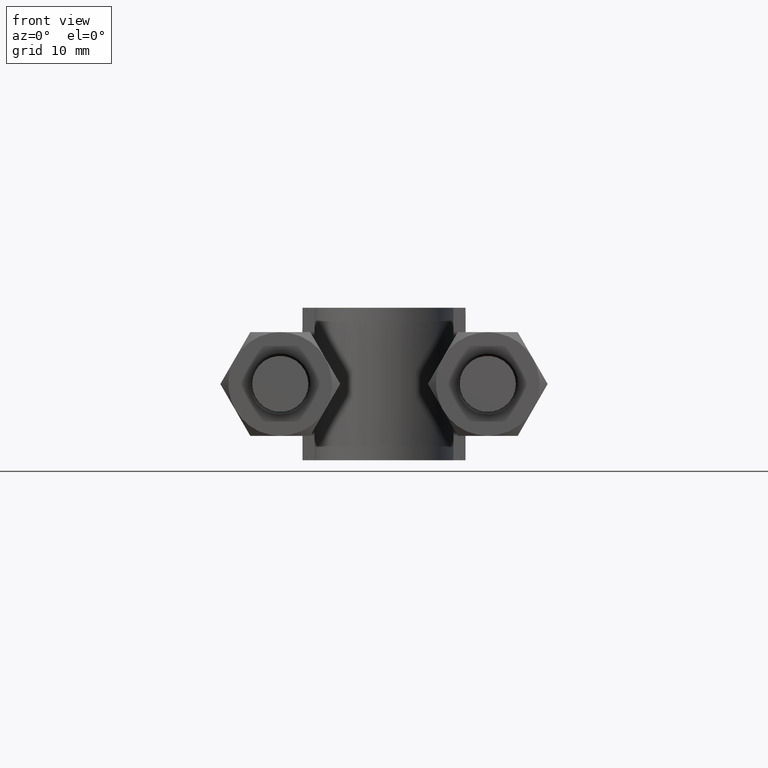
[diagram: clean part render]
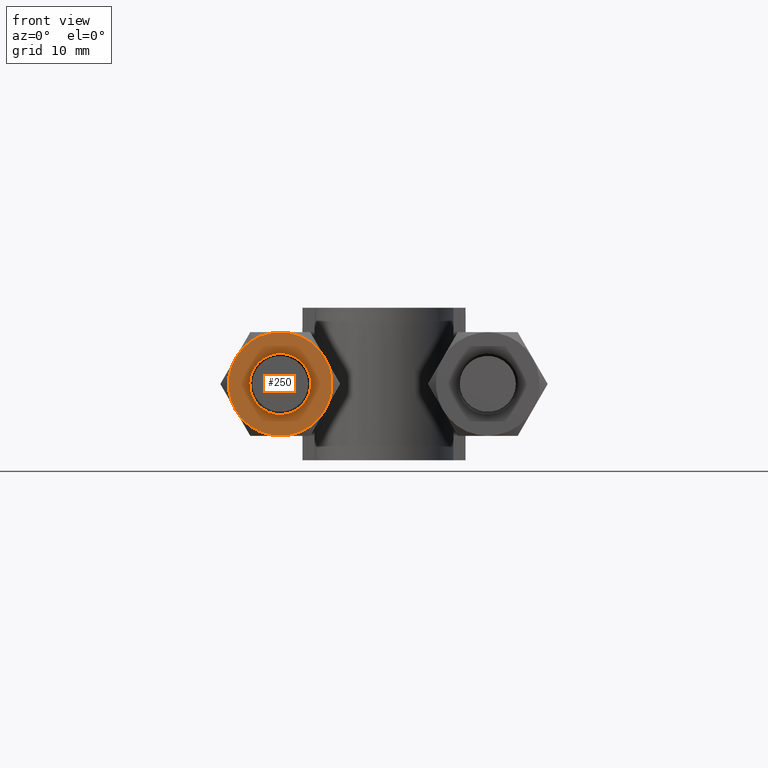
[diagram: same view with one face highlighted and labeled with its STEP entity id]
A machine part, front view. The second image highlights one B-rep face of the part: STEP entity #250.
In plain terms, the highlighted planar face has unit normal (0, 1, -0).
Its self-contained STEP definition (entity closure, byte-faithful):
#250 = ADVANCED_FACE( '', ( #368, #369 ), #370, .F. );
#368 = FACE_OUTER_BOUND( '', #1447, .T. );
#369 = FACE_BOUND( '', #1448, .T. );
#370 = PLANE( '', #1449 );
#1447 = EDGE_LOOP( '', ( #1748, #1749, #1750, #1751, #1752, #1753 ) );
#1448 = EDGE_LOOP( '', ( #1754 ) );
#1449 = AXIS2_PLACEMENT_3D( '', #1755, #1756, #1757 );
#1748 = ORIENTED_EDGE( '', *, *, #2139, .F. );
#1749 = ORIENTED_EDGE( '', *, *, #2140, .F. );
#1750 = ORIENTED_EDGE( '', *, *, #2141, .F. );
#1751 = ORIENTED_EDGE( '', *, *, #2142, .F. );
#1752 = ORIENTED_EDGE( '', *, *, #2137, .F. );
#1753 = ORIENTED_EDGE( '', *, *, #2143, .F. );
#1754 = ORIENTED_EDGE( '', *, *, #2144, .T. );
#1755 = CARTESIAN_POINT( '', ( -17.0000000000000, 19.9999999999961, -7.44901102606166E-015 ) );
#1756 = DIRECTION( '', ( 2.44921270764475E-016, 1.00000000000000, -3.06151588455594E-016 ) );
#1757 = DIRECTION( '', ( 0.866025403784227, -3.65183836637060E-016, -0.500000000000367 ) );
#2137 = EDGE_CURVE( '', #2320, #2322, #2323, .T. );
#2139 = EDGE_CURVE( '', #2325, #2326, #2327, .T. );
#2140 = EDGE_CURVE( '', #2328, #2325, #2329, .T. );
#2141 = EDGE_CURVE( '', #2330, #2328, #2331, .T. );
#2142 = EDGE_CURVE( '', #2322, #2330, #2332, .T. );
#2143 = EDGE_CURVE( '', #2326, #2320, #2333, .T. );
#2144 = EDGE_CURVE( '', #2334, #2334, #2335, .T. );
#2320 = VERTEX_POINT( '', #2768 );
#2322 = VERTEX_POINT( '', #2775 );
#2323 = CIRCLE( '', #2776, 8.50000000000000 );
#2325 = VERTEX_POINT( '', #2785 );
#2326 = VERTEX_POINT( '', #2786 );
#2327 = CIRCLE( '', #2787, 8.50000000000000 );
#2328 = VERTEX_POINT( '', #2788 );
#2329 = CIRCLE( '', #2789, 8.50000000000000 );
#2330 = VERTEX_POINT( '', #2790 );
#2331 = CIRCLE( '', #2791, 8.50000000000000 );
#2332 = CIRCLE( '', #2792, 8.50000000000000 );
#2333 = CIRCLE( '', #2793, 8.50000000000000 );
#2334 = VERTEX_POINT( '', #2794 );
#2335 = CIRCLE( '', #2795, 5.00000000000000 );
#2768 = CARTESIAN_POINT( '', ( -24.3612159321659, 19.9999999999961, 4.25000000000311 ) );
#2775 = CARTESIAN_POINT( '', ( -16.9999999999964, 19.9999999999961, 8.49999999999999 ) );
#2776 = AXIS2_PLACEMENT_3D( '', #3178, #3179, #3180 );
#2785 = CARTESIAN_POINT( '', ( -17.0000000000036, 19.9999999999961, -8.50000000000001 ) );
#2786 = CARTESIAN_POINT( '', ( -24.3612159321695, 19.9999999999961, -4.24999999999689 ) );
#2787 = AXIS2_PLACEMENT_3D( '', #3181, #3182, #3183 );
#2788 = CARTESIAN_POINT( '', ( -9.63878406783406, 19.9999999999961, -4.25000000000313 ) );
#2789 = AXIS2_PLACEMENT_3D( '', #3184, #3185, #3186 );
#2790 = CARTESIAN_POINT( '', ( -9.63878406783046, 19.9999999999961, 4.24999999999687 ) );
#2791 = AXIS2_PLACEMENT_3D( '', #3187, #3188, #3189 );
#2792 = AXIS2_PLACEMENT_3D( '', #3190, #3191, #3192 );
#2793 = AXIS2_PLACEMENT_3D( '', #3193, #3194, #3195 );
#2794 = CARTESIAN_POINT( '', ( -12.6698729810789, 19.9999999999961, -2.50000000000184 ) );
#2795 = AXIS2_PLACEMENT_3D( '', #3196, #3197, #3198 );
#3178 = CARTESIAN_POINT( '', ( -17.0000000000000, 19.9999999999961, -7.44901102606166E-015 ) );
#3179 = DIRECTION( '', ( 2.44921270764475E-016, 1.00000000000000, -3.06151588455594E-016 ) );
#3180 = DIRECTION( '', ( 0.866025403784227, -3.65183836637060E-016, -0.500000000000367 ) );
#3181 = CARTESIAN_POINT( '', ( -17.0000000000000, 19.9999999999961, -7.44901102606166E-015 ) );
#3182 = DIRECTION( '', ( 2.44921270764475E-016, 1.00000000000000, -3.06151588455594E-016 ) );
#3183 = DIRECTION( '', ( 0.866025403784227, -3.65183836637060E-016, -0.500000000000367 ) );
#3184 = CARTESIAN_POINT( '', ( -17.0000000000000, 19.9999999999961, -7.44901102606166E-015 ) );
#3185 = DIRECTION( '', ( 2.44921270764475E-016, 1.00000000000000, -3.06151588455594E-016 ) );
#3186 = DIRECTION( '', ( 0.866025403784227, -3.65183836637060E-016, -0.500000000000367 ) );
#3187 = CARTESIAN_POINT( '', ( -17.0000000000000, 19.9999999999961, -7.44901102606166E-015 ) );
#3188 = DIRECTION( '', ( 2.44921270764475E-016, 1.00000000000000, -3.06151588455594E-016 ) );
#3189 = DIRECTION( '', ( 0.866025403784227, -3.65183836637060E-016, -0.500000000000367 ) );
#3190 = CARTESIAN_POINT( '', ( -17.0000000000000, 19.9999999999961, -7.44901102606166E-015 ) );
#3191 = DIRECTION( '', ( 2.44921270764475E-016, 1.00000000000000, -3.06151588455594E-016 ) );
#3192 = DIRECTION( '', ( 0.866025403784227, -3.65183836637060E-016, -0.500000000000367 ) );
#3193 = CARTESIAN_POINT( '', ( -17.0000000000000, 19.9999999999961, -7.44901102606166E-015 ) );
#3194 = DIRECTION( '', ( 2.44921270764475E-016, 1.00000000000000, -3.06151588455594E-016 ) );
#3195 = DIRECTION( '', ( 0.866025403784227, -3.65183836637060E-016, -0.500000000000367 ) );
#3196 = CARTESIAN_POINT( '', ( -17.0000000000000, 19.9999999999961, -7.44901102606166E-015 ) );
#3197 = DIRECTION( '', ( 2.44921270764475E-016, 1.00000000000000, -3.06151588455594E-016 ) );
#3198 = DIRECTION( '', ( 0.866025403784227, -3.65183836637060E-016, -0.500000000000367 ) );